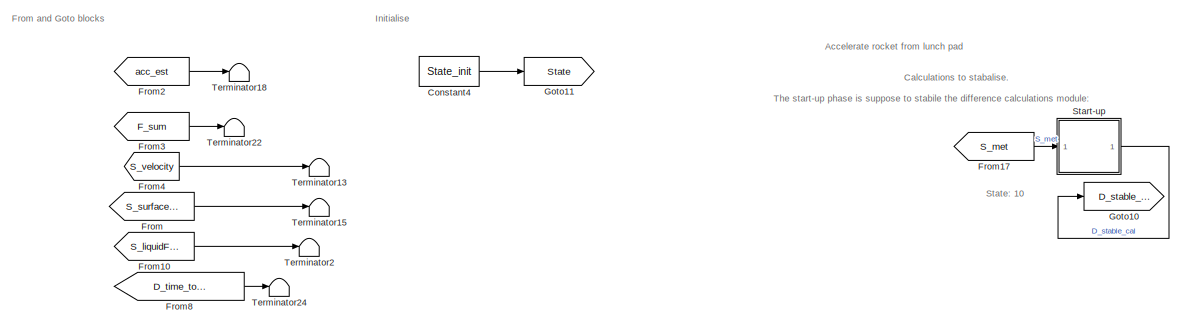
[diagram: root canvas - part 1/6, top center region]
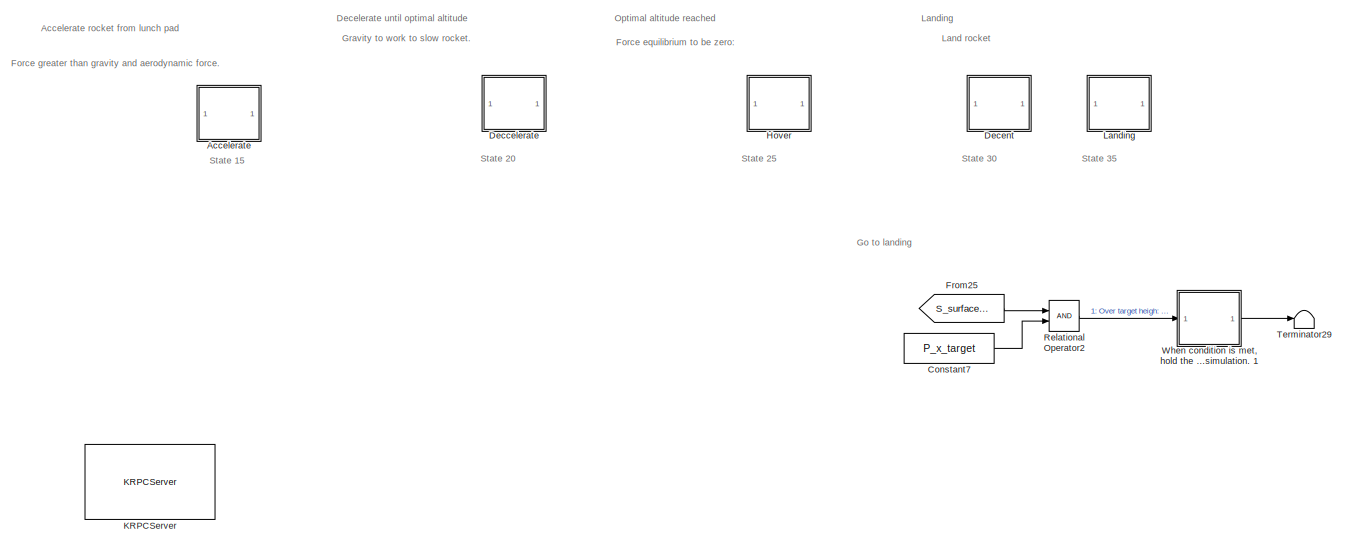
[diagram: root canvas - part 2/6, top right region]
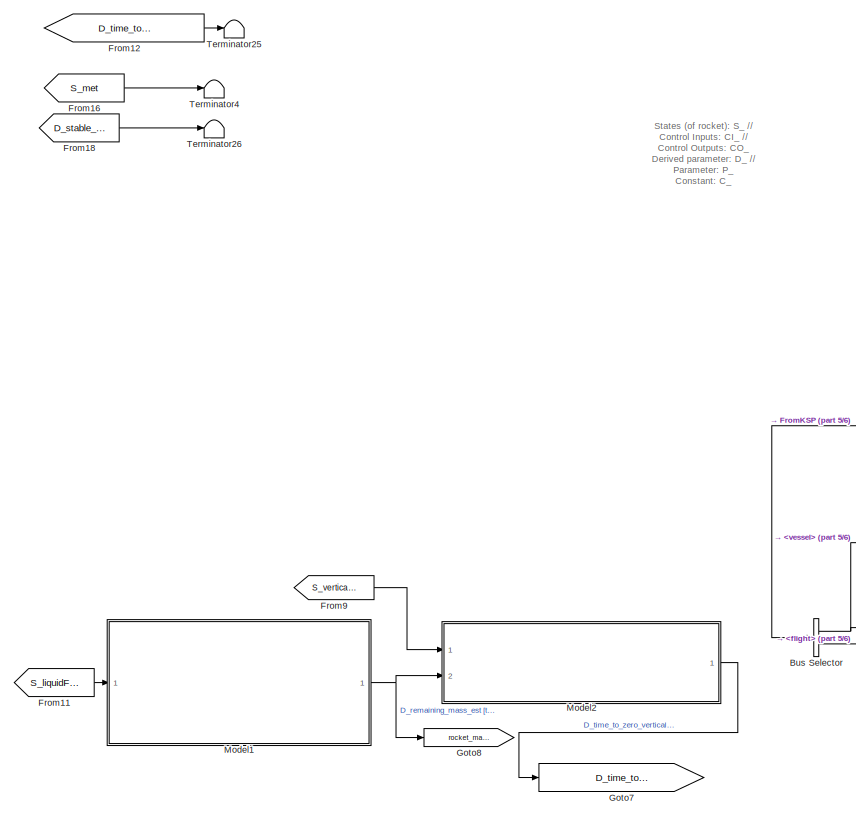
[diagram: root canvas - part 3/6, central region]
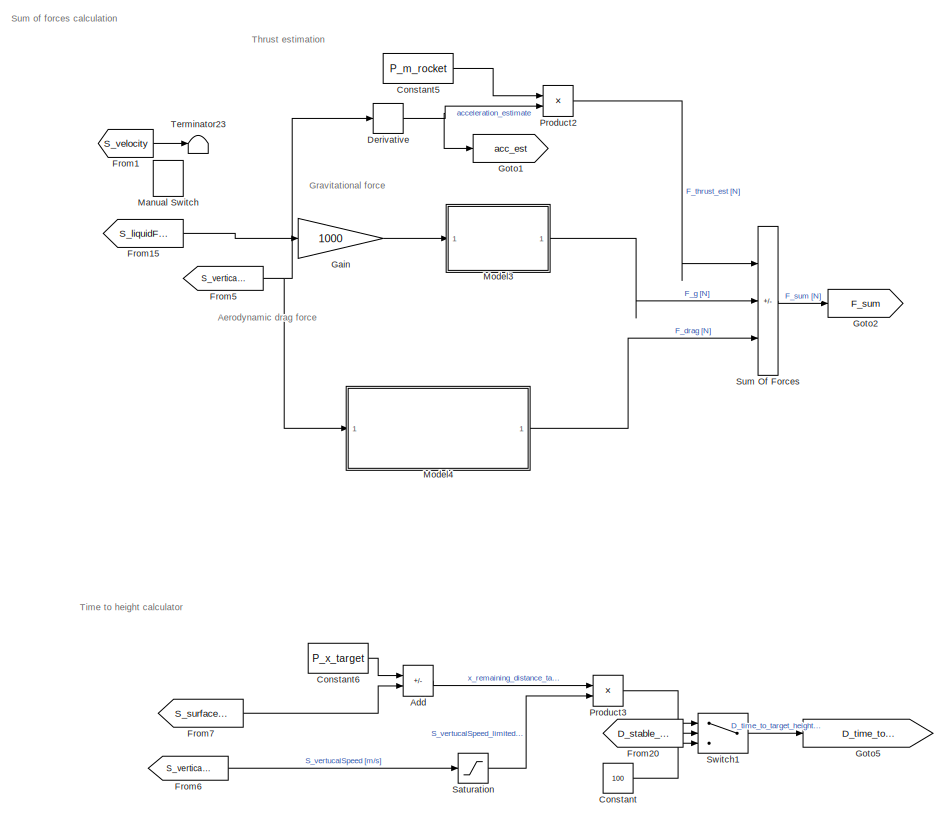
[diagram: root canvas - part 4/6, middle left region]
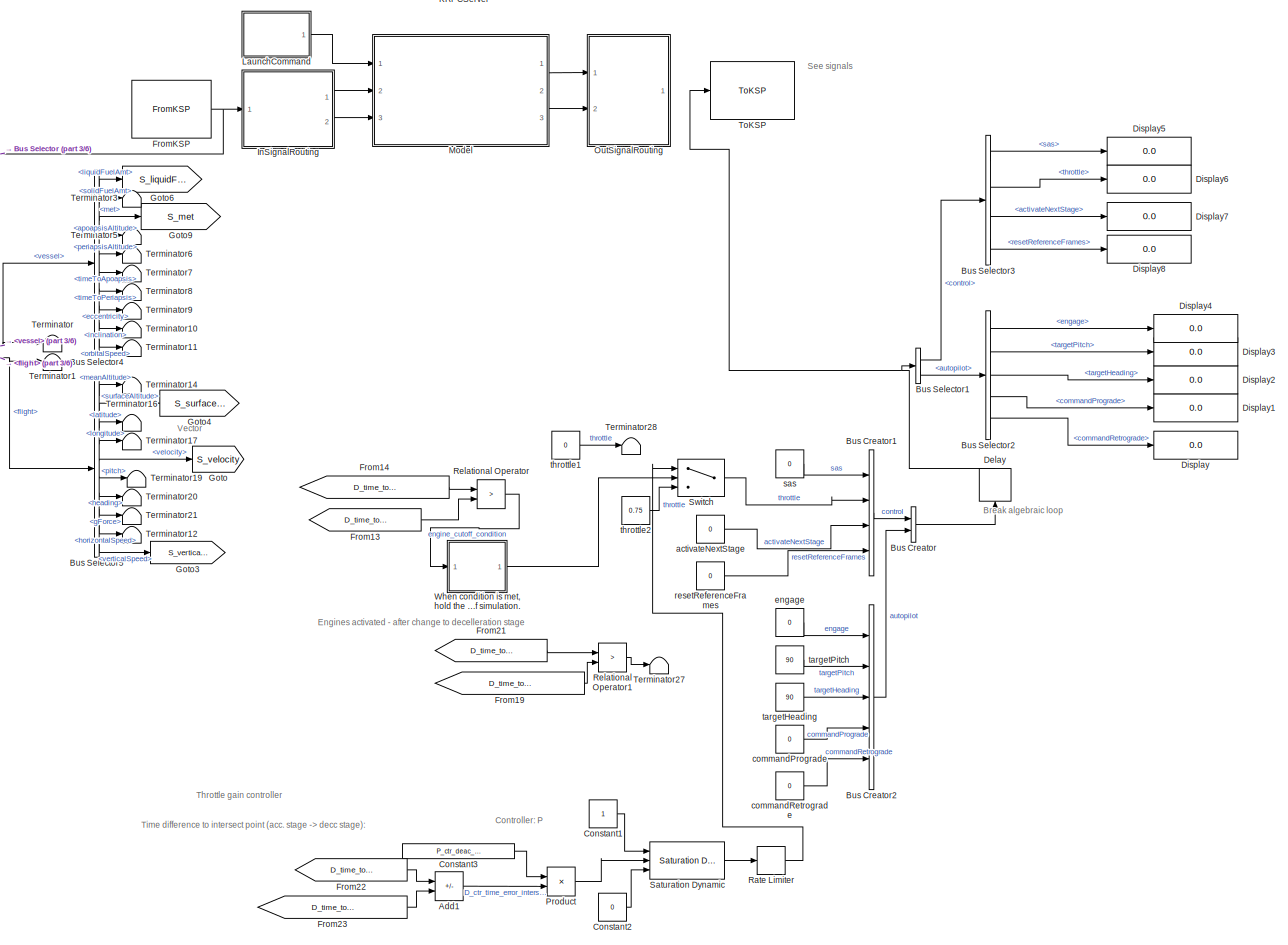
[diagram: root canvas - part 5/6, bottom center region]
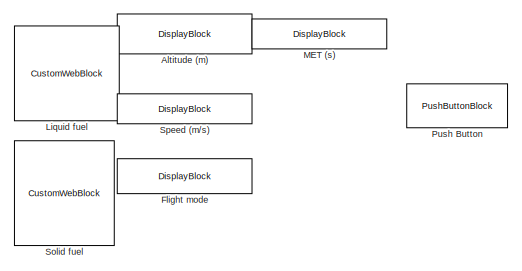
[diagram: root canvas - part 6/6, middle right region]
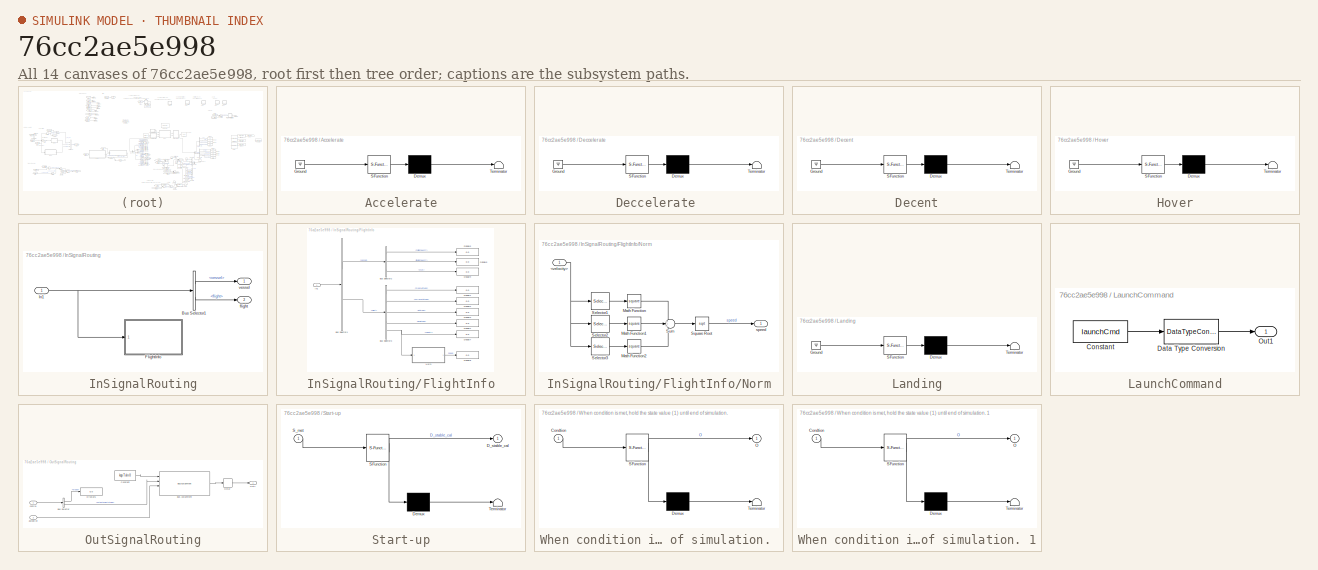
[diagram: thumbnail index - all 14 canvases of the model, root first then tree order]
MODEL slx_76cc2ae5e998
KIND model
CONFIG AbsTol = auto
CONFIG EnableMultiTasking = off
CONFIG FixedStep = 0.01
CONFIG MaxStep = auto
CONFIG MinStep = auto
CONFIG RelTol = 1e-3
CONFIG SampleTimeConstraint = Unconstrained
CONFIG SolverName = FixedStepAuto
CONFIG StartTime = 0.0
CONFIG StopTime = inf
BLOCK [SubSystem] Accelerate
  ErrorFcn = Stateflow.Translate.translate
  PermitHierarchicalResolution = ExplicitOnly
  Ports = []
  RequestExecContextInheritance = off
  SFBlockType = Chart
  TreatAsAtomicUnit = on
BLOCK [Demux] Accelerate/ Demux 
  Outputs = 1
  Ports = [1, 1]
BLOCK [Ground] Accelerate/ Ground 
BLOCK [S-Function] Accelerate/ SFunction 
  EnableBusSupport = on
  FunctionName = sf_sfun
  PortCounts = [1 1]
  Ports = [1, 1]
  SFcnIsStateOwnerBlock = off
  SFunctionDeploymentMode = off
  Tag = Stateflow S-Function 3
BLOCK [Terminator] Accelerate/ Terminator 
BLOCK [Sum] Add
  IconShape = rectangular
  Inputs = +-
  Ports = [2, 1]
BLOCK [Sum] Add1
  IconShape = rectangular
  Inputs = +-
  Ports = [2, 1]
BLOCK [DisplayBlock] Altitude (m)
  Format = short
  LabelPosition = Bottom
  Transparency = 1
BLOCK [BusCreator] Bus Creator
  DisplayOption = bar
  InheritFromInputs = on
  Inputs = 2
  NonVirtualBus = on
  OutDataTypeStr = Bus: kspTxIn
  Ports = [2, 1]
BLOCK [BusCreator] Bus Creator1
  DisplayOption = bar
  InheritFromInputs = on
  Inputs = 4
  NonVirtualBus = on
  OutDataTypeStr = Bus: control
  Ports = [4, 1]
BLOCK [BusCreator] Bus Creator2
  DisplayOption = bar
  InheritFromInputs = on
  Inputs = 5
  NonVirtualBus = on
  OutDataTypeStr = Bus: autopilot
  Ports = [5, 1]
BLOCK [BusSelector] Bus Selector
  OutputSignals = vessel,flight
  Ports = [1, 2]
BLOCK [BusSelector] Bus Selector1
  OutputSignals = control,autopilot
  Ports = [1, 2]
BLOCK [BusSelector] Bus Selector2
  OutputSignals = engage,targetPitch,targetHeading,commandPrograde,commandRetrograde
  Ports = [1, 5]
BLOCK [BusSelector] Bus Selector3
  OutputSignals = sas,throttle,activateNextStage,resetReferenceFrames
  Ports = [1, 4]
BLOCK [BusSelector] Bus Selector4
  OutputSignals = liquidFuelAmt,solidFuelAmt,met,apoapsisAltitude,periapsisAltitude,timeToApoapsis,timeToPeriapsis,eccentricity,inclination,orbitalSpeed
  Ports = [1, 10]
BLOCK [BusSelector] Bus Selector5
  OutputSignals = meanAltitude,surfaceAltitude,latitude,longitude,velocity,pitch,heading,gForce,horizontalSpeed,verticalSpeed
  Ports = [1, 10]
BLOCK [Constant] Constant
  Value = 100
BLOCK [Constant] Constant1
BLOCK [Constant] Constant2
  Value = 0
BLOCK [Constant] Constant3
  Value = P_ctr_deac_throttle_gain
BLOCK [Constant] Constant4
  Value = State_init
BLOCK [Constant] Constant5
  Value = P_m_rocket
BLOCK [Constant] Constant6
  Value = P_x_target
BLOCK [Constant] Constant7
  Value = P_x_target
BLOCK [SubSystem] Deccelerate 
  ErrorFcn = Stateflow.Translate.translate
  PermitHierarchicalResolution = ExplicitOnly
  Ports = []
  RequestExecContextInheritance = off
  SFBlockType = Chart
  TreatAsAtomicUnit = on
BLOCK [Demux] Deccelerate / Demux 
  Outputs = 1
  Ports = [1, 1]
BLOCK [Ground] Deccelerate / Ground 
BLOCK [S-Function] Deccelerate / SFunction 
  EnableBusSupport = on
  FunctionName = sf_sfun
  PortCounts = [1 1]
  Ports = [1, 1]
  SFcnIsStateOwnerBlock = off
  SFunctionDeploymentMode = off
  Tag = Stateflow S-Function 1
BLOCK [Terminator] Deccelerate / Terminator 
BLOCK [SubSystem] Decent
  ErrorFcn = Stateflow.Translate.translate
  PermitHierarchicalResolution = ExplicitOnly
  Ports = []
  RequestExecContextInheritance = off
  SFBlockType = Chart
  TreatAsAtomicUnit = on
BLOCK [Demux] Decent/ Demux 
  Outputs = 1
  Ports = [1, 1]
BLOCK [Ground] Decent/ Ground 
BLOCK [S-Function] Decent/ SFunction 
  EnableBusSupport = on
  FunctionName = sf_sfun
  PortCounts = [1 1]
  Ports = [1, 1]
  SFcnIsStateOwnerBlock = off
  SFunctionDeploymentMode = off
  Tag = Stateflow S-Function 7
BLOCK [Terminator] Decent/ Terminator 
BLOCK [Delay] Delay
  DelayLength = 1
  InputPortMap = u0
  NameLocation = right
  Ports = [1, 1]
BLOCK [Derivative] Derivative
BLOCK [Display] Display
  Decimation = 1
  Ports = [1]
BLOCK [Display] Display1
  Decimation = 1
  Ports = [1]
BLOCK [Display] Display2
  Decimation = 1
  Ports = [1]
BLOCK [Display] Display3
  Decimation = 1
  Ports = [1]
BLOCK [Display] Display4
  Decimation = 1
  Ports = [1]
BLOCK [Display] Display5
  Decimation = 1
  Ports = [1]
BLOCK [Display] Display6
  Decimation = 1
  Ports = [1]
BLOCK [Display] Display7
  Decimation = 1
  Ports = [1]
BLOCK [Display] Display8
  Decimation = 1
  Ports = [1]
BLOCK [DisplayBlock] Flight mode
  Format = short
  LabelPosition = Bottom
  Transparency = 1
BLOCK [From] From
  GotoTag = S_surfaceAltitude
BLOCK [From] From1
  Commented = on
  GotoTag = S_velocity
BLOCK [From] From10
  GotoTag = S_liquidFuelAmt
BLOCK [From] From11
  GotoTag = S_liquidFuelAmt
BLOCK [From] From12
  GotoTag = D_time_to_zero_vertical_velocity
BLOCK [From] From13
  GotoTag = D_time_to_target_height
BLOCK [From] From14
  GotoTag = D_time_to_zero_vertical_velocity
BLOCK [From] From15
  GotoTag = S_liquidFuelAmt
BLOCK [From] From16
  GotoTag = S_met
BLOCK [From] From17
  GotoTag = S_met
BLOCK [From] From18
  GotoTag = D_stable_cal
BLOCK [From] From19
  GotoTag = D_time_to_zero_vertical_velocity
BLOCK [From] From2
  GotoTag = acc_est
BLOCK [From] From20
  GotoTag = D_stable_cal
BLOCK [From] From21
  GotoTag = D_time_to_target_height
BLOCK [From] From22
  GotoTag = D_time_to_target_height
BLOCK [From] From23
  GotoTag = D_time_to_zero_vertical_velocity
BLOCK [From] From25
  GotoTag = S_surfaceAltitude
BLOCK [From] From3
  GotoTag = F_sum
BLOCK [From] From4
  GotoTag = S_velocity
BLOCK [From] From5
  GotoTag = S_verticalSpeed
BLOCK [From] From6
  GotoTag = S_verticalSpeed
BLOCK [From] From7
  GotoTag = S_surfaceAltitude
BLOCK [From] From8
  GotoTag = D_time_to_target_height
BLOCK [From] From9
  GotoTag = S_verticalSpeed
BLOCK [Reference] FromKSP  REF=ksplib/FromKSP  (lib defined in slx_22327d9a050f)
  Ports = [0, 1]
  SourceBlock = ksplib/FromKSP
  SourceType = FromKSP
BLOCK [Gain] Gain
  Gain = 1000
BLOCK [Goto] Goto
  GotoTag = S_velocity
BLOCK [Goto] Goto1
  GotoTag = acc_est
BLOCK [Goto] Goto10
  GotoTag = D_stable_cal
BLOCK [Goto] Goto11
  GotoTag = State
BLOCK [Goto] Goto2
  GotoTag = F_sum
BLOCK [Goto] Goto3
  GotoTag = S_verticalSpeed
BLOCK [Goto] Goto4
  GotoTag = S_surfaceAltitude
BLOCK [Goto] Goto5
  GotoTag = D_time_to_target_height
BLOCK [Goto] Goto6
  GotoTag = S_liquidFuelAmt
BLOCK [Goto] Goto7
  GotoTag = D_time_to_zero_vertical_velocity
BLOCK [Goto] Goto8
  GotoTag = rocket_mass
BLOCK [Goto] Goto9
  GotoTag = S_met
BLOCK [SubSystem] Hover
  ErrorFcn = Stateflow.Translate.translate
  PermitHierarchicalResolution = ExplicitOnly
  Ports = []
  RequestExecContextInheritance = off
  SFBlockType = Chart
  TreatAsAtomicUnit = on
BLOCK [Demux] Hover/ Demux 
  Outputs = 1
  Ports = [1, 1]
BLOCK [Ground] Hover/ Ground 
BLOCK [S-Function] Hover/ SFunction 
  EnableBusSupport = on
  FunctionName = sf_sfun
  PortCounts = [1 1]
  Ports = [1, 1]
  SFcnIsStateOwnerBlock = off
  SFunctionDeploymentMode = off
  Tag = Stateflow S-Function 5
BLOCK [Terminator] Hover/ Terminator 
BLOCK [SubSystem] InSignalRouting
  Commented = on
  Ports = [1, 2]
  RequestExecContextInheritance = off
BLOCK [BusSelector] InSignalRouting/Bus Selector1
  OutputSignals = vessel,flight
  Ports = [1, 2]
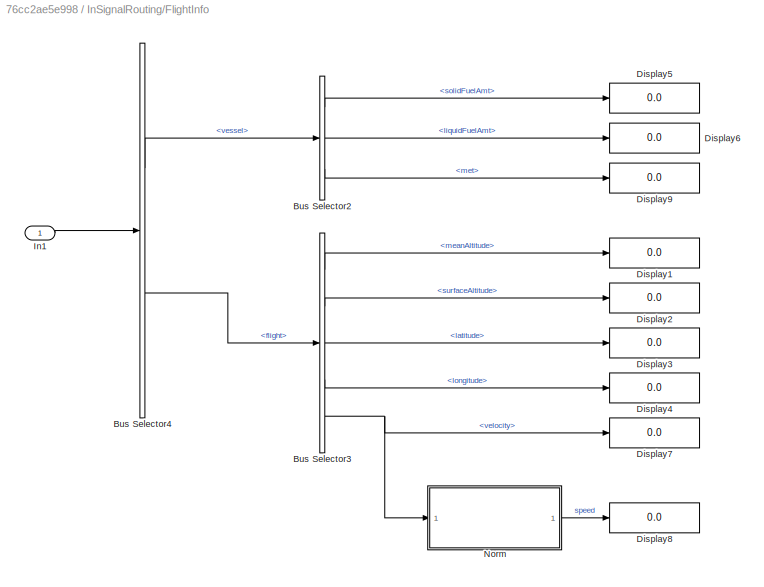
BLOCK [SubSystem] InSignalRouting/FlightInfo
  Ports = [1]
  RequestExecContextInheritance = off
BLOCK [BusSelector] InSignalRouting/FlightInfo/Bus Selector2
  OutputSignals = solidFuelAmt,liquidFuelAmt,met
  Ports = [1, 3]
BLOCK [BusSelector] InSignalRouting/FlightInfo/Bus Selector3
  OutputSignals = meanAltitude,surfaceAltitude,latitude,longitude,velocity
  Ports = [1, 5]
BLOCK [BusSelector] InSignalRouting/FlightInfo/Bus Selector4
  OutputSignals = vessel,flight
  Ports = [1, 2]
BLOCK [Display] InSignalRouting/FlightInfo/Display1
  Decimation = 1
  Ports = [1]
BLOCK [Display] InSignalRouting/FlightInfo/Display2
  Decimation = 1
  Ports = [1]
BLOCK [Display] InSignalRouting/FlightInfo/Display3
  Decimation = 1
  Ports = [1]
BLOCK [Display] InSignalRouting/FlightInfo/Display4
  Decimation = 1
  Ports = [1]
BLOCK [Display] InSignalRouting/FlightInfo/Display5
  Decimation = 1
  Ports = [1]
BLOCK [Display] InSignalRouting/FlightInfo/Display6
  Decimation = 1
  Ports = [1]
BLOCK [Display] InSignalRouting/FlightInfo/Display7
  Decimation = 1
  Ports = [1]
BLOCK [Display] InSignalRouting/FlightInfo/Display8
  Decimation = 1
  Ports = [1]
BLOCK [Display] InSignalRouting/FlightInfo/Display9
  Decimation = 1
  Ports = [1]
BLOCK [Inport] InSignalRouting/FlightInfo/In1
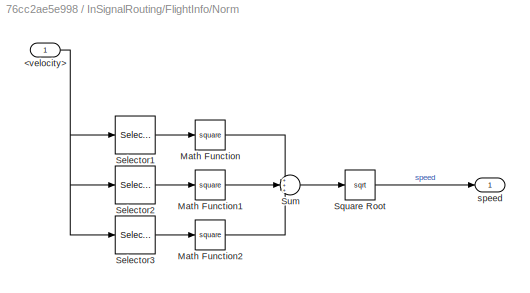
BLOCK [SubSystem] InSignalRouting/FlightInfo/Norm
  Ports = [1, 1]
  RequestExecContextInheritance = off
BLOCK [Inport] InSignalRouting/FlightInfo/Norm/<velocity>
BLOCK [Math] InSignalRouting/FlightInfo/Norm/Math Function
  Operator = square
  Ports = [1, 1]
BLOCK [Math] InSignalRouting/FlightInfo/Norm/Math Function1
  Operator = square
  Ports = [1, 1]
BLOCK [Math] InSignalRouting/FlightInfo/Norm/Math Function2
  Operator = square
  Ports = [1, 1]
BLOCK [Selector] InSignalRouting/FlightInfo/Norm/Selector1
  IndexOptions = Index vector (dialog)
  Indices = 1
  InputPortWidth = 3
  OutputSizes = 1
  Ports = [1, 1]
BLOCK [Selector] InSignalRouting/FlightInfo/Norm/Selector2
  IndexOptions = Index vector (dialog)
  Indices = 2
  InputPortWidth = 3
  OutputSizes = 1
  Ports = [1, 1]
BLOCK [Selector] InSignalRouting/FlightInfo/Norm/Selector3
  IndexOptions = Index vector (dialog)
  Indices = 3
  InputPortWidth = 3
  OutputSizes = 1
  Ports = [1, 1]
BLOCK [Sqrt] InSignalRouting/FlightInfo/Norm/Square Root
BLOCK [Sum] InSignalRouting/FlightInfo/Norm/Sum
  Inputs = +++
  Ports = [3, 1]
BLOCK [Outport] InSignalRouting/FlightInfo/Norm/speed
BLOCK [Inport] InSignalRouting/In1
BLOCK [Outport] InSignalRouting/flight
  Port = 2
BLOCK [Outport] InSignalRouting/vessel
BLOCK [Reference] KRPCServer  REF=ksplib/KRPCServer  (lib defined in slx_22327d9a050f)
  Ports = []
  SourceBlock = ksplib/KRPCServer
  SourceType = KRPCServer
BLOCK [SubSystem] Landing
  ErrorFcn = Stateflow.Translate.translate
  PermitHierarchicalResolution = ExplicitOnly
  Ports = []
  RequestExecContextInheritance = off
  SFBlockType = Chart
  TreatAsAtomicUnit = on
BLOCK [Demux] Landing/ Demux 
  Outputs = 1
  Ports = [1, 1]
BLOCK [Ground] Landing/ Ground 
BLOCK [S-Function] Landing/ SFunction 
  EnableBusSupport = on
  FunctionName = sf_sfun
  PortCounts = [1 1]
  Ports = [1, 1]
  SFcnIsStateOwnerBlock = off
  SFunctionDeploymentMode = off
  Tag = Stateflow S-Function 4
BLOCK [Terminator] Landing/ Terminator 
BLOCK [SubSystem] LaunchCommand
  Commented = on
  Ports = [0, 1]
  RequestExecContextInheritance = off
BLOCK [Constant] LaunchCommand/Constant
  Value = launchCmd
BLOCK [DataTypeConversion] LaunchCommand/Data Type Conversion
  OutDataTypeStr = boolean
  RndMeth = Floor
  SaturateOnIntegerOverflow = off
BLOCK [Outport] LaunchCommand/Out1
BLOCK [CustomWebBlock] Liquid fuel
  Configuration = {"components":[{"name":"CircularScaleComponent","settings":{"bounds":{"max":225,"min":0,"tickInterval":"auto"},"direction":"cw","flipLimits":0,"innerRadius":0.75,"internalTickHeightScaleFactor":1,"labelColor":[255,252,199],"labelFont":{"font":"Arial","fontSize":12},"labelTransparency":1,"minorTickHeightScaleFactor":0.2,"needleImage":{"size":[1890,567],"src":"data:image\/svg+xml;base64,PD94bWwgdmVy...<+15935ch>
  LabelPosition = Hide
  ShowInitialText = on
BLOCK [DisplayBlock] MET (s)
  Format = short
  LabelPosition = Bottom
  Transparency = 1
BLOCK [ManualSwitch] Manual Switch
  Commented = on
  CurrentSetting = 0
BLOCK [ModelReference] Model
  Commented = on
  ModelNameDialog = guidance
  ModelReferenceVersion = 1.177
  Ports = [3, 3]
BLOCK [ModelReference] Model1
  ModelNameDialog = remaining_mass_calculator.slx
  ModelReferenceVersion = 1.2
  Ports = [1, 1]
BLOCK [ModelReference] Model2
  ModelNameDialog = time_to_zero_vertical_velocity.slx
  ModelReferenceVersion = 1.4
  Ports = [2, 1]
BLOCK [ModelReference] Model3
  ModelNameDialog = gravitational_force.slx
  ModelReferenceVersion = 1.5
  Ports = [1, 1]
BLOCK [ModelReference] Model4
  ModelNameDialog = aerodynamic_force.slx
  ModelReferenceVersion = 1.5
  Ports = [1, 1]
BLOCK [SubSystem] OutSignalRouting
  Commented = on
  Ports = [2, 1]
  RequestExecContextInheritance = off
BLOCK [BusAssignment] OutSignalRouting/Bus Assignment
  AssignedSignals = control.activateNextStage,autopilot,control.throttle
  Ports = [4, 1]
BLOCK [BusSelector] OutSignalRouting/Bus Selector
  OutputSignals = mode,activateNextStage
  Ports = [1, 2]
BLOCK [Constant] OutSignalRouting/Constant
  OutDataTypeStr = Bus: kspTxIn
  Value = kspTxIn0
BLOCK [Delay] OutSignalRouting/Delay
  DelayLength = 1
  InputPortMap = u0
  Ports = [1, 1]
BLOCK [Display] OutSignalRouting/Display5
  Decimation = 1
  Ports = [1]
BLOCK [Outport] OutSignalRouting/Out1
BLOCK [Inport] OutSignalRouting/autopilot
  OutDataTypeStr = Bus: autopilot
  Port = 2
BLOCK [Inport] OutSignalRouting/control
  OutDataTypeStr = Bus: mcout
BLOCK [Product] Product
  Ports = [2, 1]
BLOCK [Product] Product2
  Ports = [2, 1]
BLOCK [Product] Product3
  Inputs = */
  Ports = [2, 1]
BLOCK [PushButtonBlock] Push Button
  ButtonText = Launch
BLOCK [RateLimiter] Rate Limiter
  FallingSlewLimit = -5
  RisingSlewLimit = 5
  SampleTimeMode = inherited
BLOCK [RelationalOperator] Relational Operator
  InputSameDT = off
  Operator = >
  OutDataTypeStr = boolean
  Ports = [2, 1]
  RndMeth = Simplest
BLOCK [RelationalOperator] Relational Operator1
  InputSameDT = off
  Operator = >
  OutDataTypeStr = boolean
  Ports = [2, 1]
  RndMeth = Simplest
BLOCK [RelationalOperator] Relational Operator2
  InputSameDT = off
  OutDataTypeStr = boolean
  Ports = [2, 1]
  RndMeth = Simplest
BLOCK [Saturate] Saturation
  LowerLimit = 0.0001
  UpperLimit = 10000
BLOCK [Reference] Saturation Dynamic  REF=simulink/Discontinuities/Saturation
Dynamic
  Ports = [3, 1]
  SourceBlock = simulink/Discontinuities/Saturation\nDynamic
  SourceProductBaseCode = SL
  SourceType = Saturation Dynamic
BLOCK [CustomWebBlock] Solid fuel
  Configuration = {"components":[{"name":"CircularScaleComponent","settings":{"bounds":{"max":750,"min":0,"tickInterval":"auto"},"direction":"cw","flipLimits":0,"innerRadius":0.75,"internalTickHeightScaleFactor":1,"labelColor":[255,252,199],"labelFont":{"font":"Arial","fontSize":12},"labelTransparency":1,"minorTickHeightScaleFactor":0.2,"needleImage":{"size":[1890,567],"src":"data:image\/svg+xml;base64,PD94bWwgdmVy...<+15935ch>
  LabelPosition = Hide
  ShowInitialText = on
BLOCK [DisplayBlock] Speed (m//s)
  Format = short
  LabelPosition = Bottom
  Transparency = 1
BLOCK [SubSystem] Start-up
  ErrorFcn = Stateflow.Translate.translate
  PermitHierarchicalResolution = ExplicitOnly
  Ports = [1, 1]
  RequestExecContextInheritance = off
  SFBlockType = Chart
  TreatAsAtomicUnit = on
BLOCK [Demux] Start-up/ Demux 
  Outputs = 1
  Ports = [1, 1]
BLOCK [S-Function] Start-up/ SFunction 
  EnableBusSupport = on
  FunctionName = sf_sfun
  PortCounts = [1 2]
  Ports = [1, 2]
  SFcnIsStateOwnerBlock = off
  SFunctionDeploymentMode = off
  Tag = Stateflow S-Function 2
BLOCK [Terminator] Start-up/ Terminator 
BLOCK [Outport] Start-up/D_stable_cal
BLOCK [Inport] Start-up/S_met
BLOCK [Sum] Sum Of Forces
  IconShape = rectangular
  Inputs = |+--
  Ports = [3, 1]
BLOCK [Switch] Switch
  Criteria = u2 > Threshold
  InputSameDT = off
  SaturateOnIntegerOverflow = off
BLOCK [Switch] Switch1
  Criteria = u2 > Threshold
  InputSameDT = off
  SaturateOnIntegerOverflow = off
BLOCK [Terminator] Terminator
BLOCK [Terminator] Terminator1
BLOCK [Terminator] Terminator10
BLOCK [Terminator] Terminator11
BLOCK [Terminator] Terminator12
BLOCK [Terminator] Terminator13
BLOCK [Terminator] Terminator14
BLOCK [Terminator] Terminator15
BLOCK [Terminator] Terminator16
BLOCK [Terminator] Terminator17
BLOCK [Terminator] Terminator18
BLOCK [Terminator] Terminator19
BLOCK [Terminator] Terminator2
BLOCK [Terminator] Terminator20
BLOCK [Terminator] Terminator21
BLOCK [Terminator] Terminator22
BLOCK [Terminator] Terminator23
  Commented = on
BLOCK [Terminator] Terminator24
BLOCK [Terminator] Terminator25
BLOCK [Terminator] Terminator26
BLOCK [Terminator] Terminator27
BLOCK [Terminator] Terminator28
BLOCK [Terminator] Terminator29
BLOCK [Terminator] Terminator3
BLOCK [Terminator] Terminator4
BLOCK [Terminator] Terminator5
BLOCK [Terminator] Terminator6
BLOCK [Terminator] Terminator7
BLOCK [Terminator] Terminator8
BLOCK [Terminator] Terminator9
BLOCK [Reference] ToKSP  REF=ksplib/ToKSP  (lib defined in slx_22327d9a050f)
  Ports = [1]
  SourceBlock = ksplib/ToKSP
  SourceType = ToKSP
BLOCK [SubSystem] When condition is met, hold the state value (1) until end of simulation. 
  ErrorFcn = Stateflow.Translate.translate
  PermitHierarchicalResolution = ExplicitOnly
  Ports = [1, 1]
  RequestExecContextInheritance = off
  SFBlockType = Chart
  TreatAsAtomicUnit = on
BLOCK [Demux] When condition is met, hold the state value (1) until end of simulation. / Demux 
  Outputs = 1
  Ports = [1, 1]
BLOCK [S-Function] When condition is met, hold the state value (1) until end of simulation. / SFunction 
  EnableBusSupport = on
  FunctionName = sf_sfun
  PortCounts = [1 2]
  Ports = [1, 2]
  SFcnIsStateOwnerBlock = off
  SFunctionDeploymentMode = off
  Tag = Stateflow S-Function 6
BLOCK [Terminator] When condition is met, hold the state value (1) until end of simulation. / Terminator 
BLOCK [Inport] When condition is met, hold the state value (1) until end of simulation. /Condtion
BLOCK [Outport] When condition is met, hold the state value (1) until end of simulation. /O
BLOCK [SubSystem] When condition is met, hold the state value (1) until end of simulation. 1
  ErrorFcn = Stateflow.Translate.translate
  PermitHierarchicalResolution = ExplicitOnly
  Ports = [1, 1]
  RequestExecContextInheritance = off
  SFBlockType = Chart
  TreatAsAtomicUnit = on
BLOCK [Demux] When condition is met, hold the state value (1) until end of simulation. 1/ Demux 
  Outputs = 1
  Ports = [1, 1]
BLOCK [S-Function] When condition is met, hold the state value (1) until end of simulation. 1/ SFunction 
  EnableBusSupport = on
  FunctionName = sf_sfun
  PortCounts = [1 2]
  Ports = [1, 2]
  SFcnIsStateOwnerBlock = off
  SFunctionDeploymentMode = off
  Tag = Stateflow S-Function 8
BLOCK [Terminator] When condition is met, hold the state value (1) until end of simulation. 1/ Terminator 
BLOCK [Inport] When condition is met, hold the state value (1) until end of simulation. 1/Condtion
BLOCK [Outport] When condition is met, hold the state value (1) until end of simulation. 1/O
BLOCK [Constant] activateNextStage
  OutDataTypeStr = boolean
  Value = 0
BLOCK [Constant] commandPrograde
  OutDataTypeStr = boolean
  Value = 0
BLOCK [Constant] commandRetrograde
  OutDataTypeStr = boolean
  Value = 0
BLOCK [Constant] engage
  OutDataTypeStr = boolean
  Value = 0
BLOCK [Constant] resetReferenceFrames
  OutDataTypeStr = boolean
  Value = 0
BLOCK [Constant] sas
  OutDataTypeStr = boolean
  Value = 0
BLOCK [Constant] targetHeading
  Value = 90
BLOCK [Constant] targetPitch
  Value = 90
BLOCK [Constant] throttle1
  Value = 0
BLOCK [Constant] throttle2
  Value = 0.75
ANNOTATION (root): Accelerate rocket from lunch pad
ANNOTATION (root): Aerodynamic drag force
ANNOTATION (root): Break algebraic loop
ANNOTATION (root): Calculations to stabalise.
ANNOTATION (root): Controller: P
ANNOTATION (root): Decelerate until optimal altitude
ANNOTATION (root): Engines activated - after change to decelleration stage
ANNOTATION (root): Force equilibrium to be zero:
ANNOTATION (root): Force greater than gravity and aerodynamic force.
ANNOTATION (root): From and Goto blocks
ANNOTATION (root): Go to landing
ANNOTATION (root): Gravitational force
ANNOTATION (root): Gravity to work to slow rocket.
ANNOTATION (root): Initialise
ANNOTATION (root): Land rocket
ANNOTATION (root): Landing
ANNOTATION (root): Optimal altitude reached
ANNOTATION (root): See signals
ANNOTATION (root): State 15
ANNOTATION (root): State 20
ANNOTATION (root): State 25
ANNOTATION (root): State 30
ANNOTATION (root): State 35
ANNOTATION (root): State: 10
ANNOTATION (root): States (of rocket): S_ // Control Inputs: CI_ // Control Outputs: CO_ Derived parameter: D_ // Parameter: P_ Constant: C_
ANNOTATION (root): Sum of forces calculation
ANNOTATION (root): The start-up phase is suppose to stabile the difference calculations module:
ANNOTATION (root): Throttle gain controller
ANNOTATION (root): Thrust estimation
ANNOTATION (root): Time difference to intersect point (acc. stage -> decc stage):
ANNOTATION (root): Time to height calculator
ANNOTATION (root): Vector
LINE Add1:1 -> Product:2
LINE Add:1 -> Product3:1
LINE Bus Creator1:1 -> Bus Creator:1
LINE Bus Creator2:1 -> Bus Creator:2
LINE Bus Creator:1 -> Delay:1
LINE Bus Selector1:1 -> Bus Selector3:1
LINE Bus Selector1:2 -> Bus Selector2:1
LINE Bus Selector2:1 -> Display4:1
LINE Bus Selector2:2 -> Display3:1
LINE Bus Selector2:3 -> Display2:1
LINE Bus Selector2:4 -> Display1:1
LINE Bus Selector2:5 -> Display:1
LINE Bus Selector3:1 -> Display5:1
LINE Bus Selector3:2 -> Display6:1
LINE Bus Selector3:3 -> Display7:1
LINE Bus Selector3:4 -> Display8:1
LINE Bus Selector4:1 -> Goto6:1
LINE Bus Selector4:10 -> Terminator11:1
LINE Bus Selector4:2 -> Terminator3:1
LINE Bus Selector4:3 -> Goto9:1
LINE Bus Selector4:4 -> Terminator5:1
LINE Bus Selector4:5 -> Terminator6:1
LINE Bus Selector4:6 -> Terminator7:1
LINE Bus Selector4:7 -> Terminator8:1
LINE Bus Selector4:8 -> Terminator9:1
LINE Bus Selector4:9 -> Terminator10:1
LINE Bus Selector5:1 -> Terminator14:1
LINE Bus Selector5:10 -> Goto3:1
LINE Bus Selector5:2 -> Goto4:1
LINE Bus Selector5:3 -> Terminator16:1
LINE Bus Selector5:4 -> Terminator17:1
LINE Bus Selector5:5 -> Goto:1
LINE Bus Selector5:6 -> Terminator19:1
LINE Bus Selector5:7 -> Terminator20:1
LINE Bus Selector5:8 -> Terminator21:1
LINE Bus Selector5:9 -> Terminator12:1
NET Bus Selector:1 -> Bus Selector4:1, Terminator:1
NET Bus Selector:2 -> Bus Selector5:1, Terminator1:1
LINE Constant1:1 -> Saturation Dynamic:1
LINE Constant2:1 -> Saturation Dynamic:3
LINE Constant3:1 -> Product:1
LINE Constant4:1 -> Goto11:1
LINE Constant5:1 -> Product2:1
LINE Constant6:1 -> Add:1
LINE Constant7:1 -> Relational Operator2:2
LINE Constant:1 -> Switch1:3
NET Delay:1 -> Bus Selector1:1, ToKSP:1
NET Derivative:1 -> Goto1:1, Product2:2
LINE From10:1 -> Terminator2:1
LINE From11:1 -> Model1:1
LINE From12:1 -> Terminator25:1
LINE From13:1 -> Relational Operator:2
LINE From14:1 -> Relational Operator:1
LINE From15:1 -> Gain:1
LINE From16:1 -> Terminator4:1
LINE From17:1 -> Start-up:1
LINE From18:1 -> Terminator26:1
LINE From19:1 -> Relational Operator1:2
LINE From1:1 -> Terminator23:1
LINE From20:1 -> Switch1:2
LINE From21:1 -> Relational Operator1:1
LINE From22:1 -> Add1:1
LINE From23:1 -> Add1:2
LINE From25:1 -> Relational Operator2:1
LINE From2:1 -> Terminator18:1
LINE From3:1 -> Terminator22:1
LINE From4:1 -> Terminator13:1
NET From5:1 -> Derivative:1, Model4:1
LINE From6:1 -> Saturation:1
LINE From7:1 -> Add:2
LINE From8:1 -> Terminator24:1
LINE From9:1 -> Model2:1
LINE From:1 -> Terminator15:1
NET FromKSP:1 -> Bus Selector:1, InSignalRouting:1
LINE Gain:1 -> Model3:1
LINE InSignalRouting/Bus Selector1:1 -> InSignalRouting/vessel:1
LINE InSignalRouting/Bus Selector1:2 -> InSignalRouting/flight:1
LINE InSignalRouting/FlightInfo/Bus Selector2:1 -> InSignalRouting/FlightInfo/Display5:1
LINE InSignalRouting/FlightInfo/Bus Selector2:2 -> InSignalRouting/FlightInfo/Display6:1
LINE InSignalRouting/FlightInfo/Bus Selector2:3 -> InSignalRouting/FlightInfo/Display9:1
LINE InSignalRouting/FlightInfo/Bus Selector3:1 -> InSignalRouting/FlightInfo/Display1:1
LINE InSignalRouting/FlightInfo/Bus Selector3:2 -> InSignalRouting/FlightInfo/Display2:1
LINE InSignalRouting/FlightInfo/Bus Selector3:3 -> InSignalRouting/FlightInfo/Display3:1
LINE InSignalRouting/FlightInfo/Bus Selector3:4 -> InSignalRouting/FlightInfo/Display4:1
NET InSignalRouting/FlightInfo/Bus Selector3:5 -> InSignalRouting/FlightInfo/Display7:1, InSignalRouting/FlightInfo/Norm:1
LINE InSignalRouting/FlightInfo/Bus Selector4:1 -> InSignalRouting/FlightInfo/Bus Selector2:1
LINE InSignalRouting/FlightInfo/Bus Selector4:2 -> InSignalRouting/FlightInfo/Bus Selector3:1
LINE InSignalRouting/FlightInfo/In1:1 -> InSignalRouting/FlightInfo/Bus Selector4:1
NET InSignalRouting/FlightInfo/Norm/<velocity>:1 -> InSignalRouting/FlightInfo/Norm/Selector1:1, InSignalRouting/FlightInfo/Norm/Selector2:1, InSignalRouting/FlightInfo/Norm/Selector3:1
LINE InSignalRouting/FlightInfo/Norm/Math Function1:1 -> InSignalRouting/FlightInfo/Norm/Sum:2
LINE InSignalRouting/FlightInfo/Norm/Math Function2:1 -> InSignalRouting/FlightInfo/Norm/Sum:3
LINE InSignalRouting/FlightInfo/Norm/Math Function:1 -> InSignalRouting/FlightInfo/Norm/Sum:1
LINE InSignalRouting/FlightInfo/Norm/Selector1:1 -> InSignalRouting/FlightInfo/Norm/Math Function:1
LINE InSignalRouting/FlightInfo/Norm/Selector2:1 -> InSignalRouting/FlightInfo/Norm/Math Function1:1
LINE InSignalRouting/FlightInfo/Norm/Selector3:1 -> InSignalRouting/FlightInfo/Norm/Math Function2:1
LINE InSignalRouting/FlightInfo/Norm/Square Root:1 -> InSignalRouting/FlightInfo/Norm/speed:1
LINE InSignalRouting/FlightInfo/Norm/Sum:1 -> InSignalRouting/FlightInfo/Norm/Square Root:1
LINE InSignalRouting/FlightInfo/Norm:1 -> InSignalRouting/FlightInfo/Display8:1
NET InSignalRouting/In1:1 -> InSignalRouting/Bus Selector1:1, InSignalRouting/FlightInfo:1
LINE InSignalRouting:1 -> Model:2
LINE InSignalRouting:2 -> Model:3
LINE LaunchCommand/Constant:1 -> LaunchCommand/Data Type Conversion:1
LINE LaunchCommand/Data Type Conversion:1 -> LaunchCommand/Out1:1
LINE LaunchCommand:1 -> Model:1
NET Model1:1 -> Goto8:1, Model2:2
LINE Model2:1 -> Goto7:1
LINE Model3:1 -> Sum Of Forces:2
LINE Model4:1 -> Sum Of Forces:3
LINE Model:1 -> OutSignalRouting:1
LINE Model:2 -> OutSignalRouting:2
LINE OutSignalRouting/Bus Assignment:1 -> OutSignalRouting/Delay:1
LINE OutSignalRouting/Bus Selector:1 -> OutSignalRouting/Display5:1
LINE OutSignalRouting/Bus Selector:2 -> OutSignalRouting/Bus Assignment:2
LINE OutSignalRouting/Constant:1 -> OutSignalRouting/Bus Assignment:1
LINE OutSignalRouting/Delay:1 -> OutSignalRouting/Out1:1
LINE OutSignalRouting/autopilot:1 -> OutSignalRouting/Bus Assignment:3
LINE OutSignalRouting/control:1 -> OutSignalRouting/Bus Selector:1
LINE Product2:1 -> Sum Of Forces:1
LINE Product3:1 -> Switch1:1
LINE Product:1 -> Saturation Dynamic:2
LINE Rate Limiter:1 -> Switch:1
LINE Relational Operator1:1 -> Terminator27:1
LINE Relational Operator2:1 -> When condition is met, hold the state value (1) until end of simulation. 1:1
LINE Relational Operator:1 -> When condition is met, hold the state value (1) until end of simulation. :1
LINE Saturation Dynamic:1 -> Rate Limiter:1
LINE Saturation:1 -> Product3:2
LINE Start-up:1 -> Goto10:1
LINE Sum Of Forces:1 -> Goto2:1
LINE Switch1:1 -> Goto5:1
LINE Switch:1 -> Bus Creator1:2
LINE When condition is met, hold the state value (1) until end of simulation. 1:1 -> Terminator29:1
LINE When condition is met, hold the state value (1) until end of simulation. :1 -> Switch:2
LINE activateNextStage:1 -> Bus Creator1:3
LINE commandPrograde:1 -> Bus Creator2:4
LINE commandRetrograde:1 -> Bus Creator2:5
LINE engage:1 -> Bus Creator2:1
LINE resetReferenceFrames:1 -> Bus Creator1:4
LINE sas:1 -> Bus Creator1:1
LINE targetHeading:1 -> Bus Creator2:3
LINE targetPitch:1 -> Bus Creator2:2
LINE throttle1:1 -> Terminator28:1
LINE throttle2:1 -> Switch:3
note: NET lines group one-source signal fan-out (src -> all destinations, sorted); 1:1 wires keep LINE
CHART Deccelerate  states=0 transitions=0
CHART Start-up states=2 transitions=2
  STATE_LABEL 'StartCalculations\nentry: D_stable_cal = 0;\n'
  STATE_LABEL 'StabilCalculations\nentry: D_stable_cal = 1;\n'
CHART Accelerate states=0 transitions=0
CHART Landing states=0 transitions=0
CHART Hover states=0 transitions=0
CHART When condition is met, hold the state value (1) until end of simulation.  states=2 transitions=2
  STATE_LABEL 'Standby\nentry: P = 0;'
  STATE_LABEL 'HoldState\nentry: P = 1;\nduring: O = 1;'
CHART Decent states=0 transitions=0
CHART When condition is met, hold the state value (1) until end of simulation. 1 states=2 transitions=2
  STATE_LABEL 'Standby\nentry: P = 0;'
  STATE_LABEL 'HoldState\nentry: P = 1;\nduring: O = 1;'
CHART  states=0 transitions=0
CHART  states=0 transitions=0
CHART  states=0 transitions=0
CHART  states=0 transitions=0
CHART  states=0 transitions=0
CHART  states=0 transitions=0
CHART  states=0 transitions=0
CHART  states=0 transitions=0
